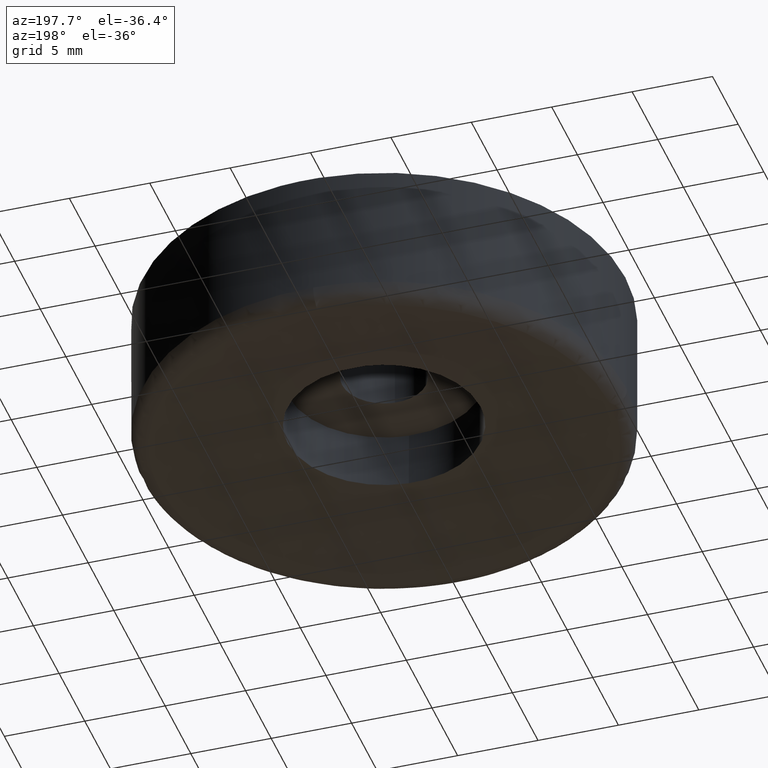
[diagram: clean part render]
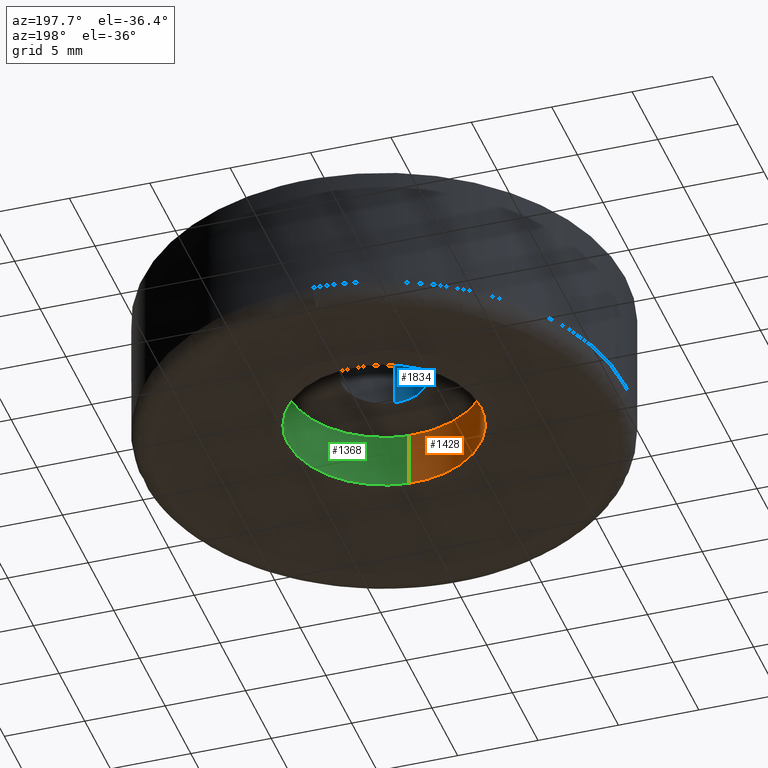
[diagram: same view with three faces highlighted in distinct colors, each labeled with its STEP entity id]
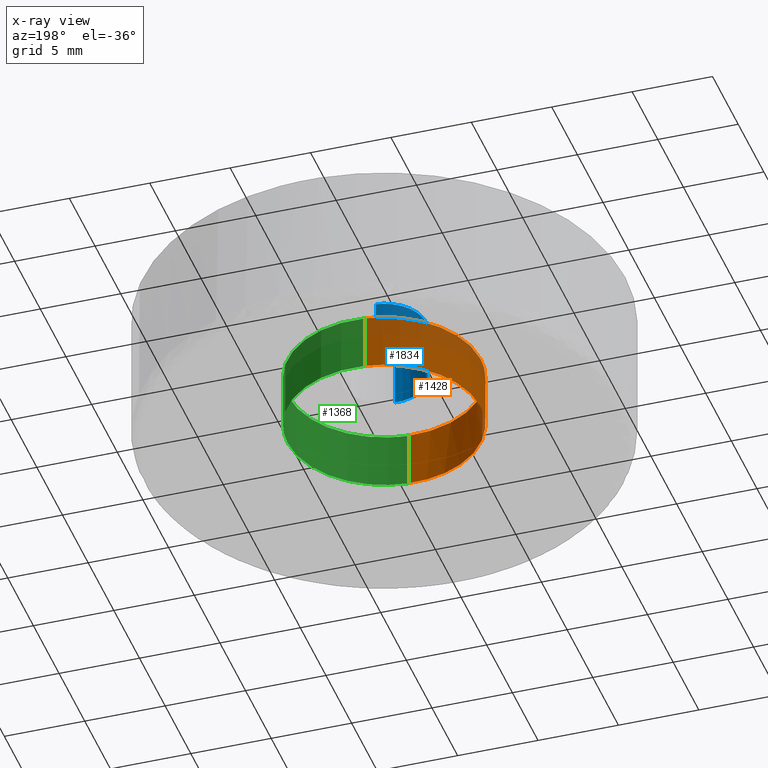
[diagram: x-ray of the same camera — body ghosted, the three highlighted faces saturated]
A machine part, auxiliary view with three faces highlighted in distinct colors.
The next image is the same camera in x-ray (body ghosted, the three faces saturated) — at least one of them is partly hidden behind the body in this view.
Their STEP definitions:

[orange] entity #1428 — the highlighted face is a freeform B-spline surface patch.
#620=CARTESIAN_POINT('',(-0.708195051552524,5.958058389177445,1.500000000000000));
#621=VERTEX_POINT('',#620);
#637=CARTESIAN_POINT('',(-6.0,0.0,1.500000000000000));
#638=VERTEX_POINT('',#637);
#639=CARTESIAN_POINT('',(-6.0,0.0,1.500000000000000));
#640=CARTESIAN_POINT('',(-6.000000000000001,5.329056483955323,1.500000000000000));
#641=CARTESIAN_POINT('',(-0.708195051552524,5.958058389177445,1.500000000000000));
#649=(BOUNDED_CURVE()B_SPLINE_CURVE(2,(#639,#640,#641),.UNSPECIFIED.,.F.,.U.)B_SPLINE_CURVE_WITH_KNOTS((3,3),(0.0,0.229562767279762),.UNSPECIFIED.)CURVE()GEOMETRIC_REPRESENTATION_ITEM()RATIONAL_B_SPLINE_CURVE((1.0,0.731050488686828,0.956027329978387))REPRESENTATION_ITEM(''));
#650=EDGE_CURVE('',#638,#621,#649,.T.);
#652=CARTESIAN_POINT('',(-3.092790974559728,-5.141463214658251,1.499999999999969));
#653=VERTEX_POINT('',#652);
#654=CARTESIAN_POINT('',(-3.092790974559728,-5.141463214658251,1.499999999999969));
#655=CARTESIAN_POINT('',(-6.000000000000001,-3.392663415912824,1.500000000000000));
#656=CARTESIAN_POINT('',(-6.0,0.0,1.500000000000000));
#664=(BOUNDED_CURVE()B_SPLINE_CURVE(2,(#654,#655,#656),.UNSPECIFIED.,.F.,.U.)B_SPLINE_CURVE_WITH_KNOTS((3,3),(0.838022804310851,1.0),.UNSPECIFIED.)CURVE()GEOMETRIC_REPRESENTATION_ITEM()RATIONAL_B_SPLINE_CURVE((0.866368645185217,0.810231911120915,1.0))REPRESENTATION_ITEM(''));
#665=EDGE_CURVE('',#653,#638,#664,.T.);
#705=CARTESIAN_POINT('',(0.366289362214313,-5.988808905210208,1.500000000000000));
#706=VERTEX_POINT('',#705);
#707=CARTESIAN_POINT('',(0.366289362214313,-5.988808905210209,1.500000000000000));
#708=CARTESIAN_POINT('',(0.183315639665489,-6.0,1.500000000000000));
#709=CARTESIAN_POINT('',(0.0,-6.0,1.500000000000000));
#710=CARTESIAN_POINT('',(-1.665557341064682,-5.999999999999999,1.500000000000000));
#711=CARTESIAN_POINT('',(-3.092790974559728,-5.141463214658251,1.499999999999969));
#719=(BOUNDED_CURVE()B_SPLINE_CURVE(2,(#707,#708,#709,#710,#711),.UNSPECIFIED.,.F.,.U.)B_SPLINE_CURVE_WITH_KNOTS((3,2,3),(0.739333016263455,0.750000000000000,0.838022804310852),.UNSPECIFIED.)CURVE()GEOMETRIC_REPRESENTATION_ITEM()RATIONAL_B_SPLINE_CURVE((0.976072157451558,0.987502851193490,1.0,0.896874870065631,0.866368645185216))REPRESENTATION_ITEM(''));
#720=EDGE_CURVE('',#706,#653,#719,.T.);
#1319=CARTESIAN_POINT('',(-0.708194925255550,5.958058404189307,4.999999999999798));
#1320=VERTEX_POINT('',#1319);
#1338=CARTESIAN_POINT('',(-0.708194925255550,5.958058404189307,4.999999999999798));
#1339=CARTESIAN_POINT('',(-0.708195051552524,5.958058389177445,1.500000000000000));
#1340=QUASI_UNIFORM_CURVE('',1,(#1338,#1339),.UNSPECIFIED.,.F.,.U.);
#1341=EDGE_CURVE('',#1320,#621,#1340,.T.);
#1346=CARTESIAN_POINT('',(0.366289339383104,-5.988808906606610,4.999999999999790));
#1347=VERTEX_POINT('',#1346);
#1348=CARTESIAN_POINT('',(0.366289339383104,-5.988808906606610,4.999999999999790));
#1349=CARTESIAN_POINT('',(0.366289362214313,-5.988808905210208,1.500000000000000));
#1350=QUASI_UNIFORM_CURVE('',1,(#1348,#1349),.UNSPECIFIED.,.F.,.U.);
#1351=EDGE_CURVE('',#1347,#706,#1350,.T.);
#1369=CARTESIAN_POINT('',(0.448816315868836,-5.983761340492246,5.087499999999794));
#1370=CARTESIAN_POINT('',(0.407671873025759,-5.986277842421164,5.087499999999797));
#1371=CARTESIAN_POINT('',(-5.622517553322059,-6.355100027740342,5.087499999999797));
#1372=CARTESIAN_POINT('',(-5.988808790531200,-0.366291237209142,5.087499999999796));
#1373=CARTESIAN_POINT('',(-6.334717180395164,5.289260945037006,5.087499999999796));
#1374=CARTESIAN_POINT('',(-0.666076646388818,5.963064800097586,5.087499999999797));
#1375=CARTESIAN_POINT('',(-0.624174310789480,5.968045527856472,5.087499999999796));
#1376=CARTESIAN_POINT('',(0.448816315868836,-5.983761340492246,1.410312500000005));
#1377=CARTESIAN_POINT('',(0.407671873025759,-5.986277842421164,1.410312500000006));
#1378=CARTESIAN_POINT('',(-5.622517553322059,-6.355100027740342,1.410312500000005));
#1379=CARTESIAN_POINT('',(-5.988808790531200,-0.366291237209142,1.410312500000005));
#1380=CARTESIAN_POINT('',(-6.334717180395164,5.289260945037006,1.410312500000006));
#1381=CARTESIAN_POINT('',(-0.666076646388818,5.963064800097586,1.410312500000005));
#1382=CARTESIAN_POINT('',(-0.624174310789480,5.968045527856472,1.410312500000005));
#1390=(BOUNDED_SURFACE()B_SPLINE_SURFACE(2,1,((#1369,#1376),(#1370,#1377),(#1371,#1378),(#1372,#1379),(#1373,#1380),(#1374,#1381),(#1375,#1382)),.UNSPECIFIED.,.F.,.F.,.U.)B_SPLINE_SURFACE_WITH_KNOTS((3,1,2,1,3),(2,2),(0.0,0.097420876338167,10.038546373292441,19.582026850368550,19.679462016986491),(0.0,3.677187499999791),.UNSPECIFIED.)GEOMETRIC_REPRESENTATION_ITEM()RATIONAL_B_SPLINE_SURFACE(((1.005740580190655,1.005740580190655),(1.002870290095327,1.002870290095327),(0.707106781186548,0.707106781186548),(1.0,1.0),(0.718822509939086,0.718822509939086),(0.980146855031721,0.980146855031721),(0.982787909268315,0.982787909268315)))REPRESENTATION_ITEM('')SURFACE());
#1391=CARTESIAN_POINT('',(-6.0,0.0,4.999999999999800));
#1392=VERTEX_POINT('',#1391);
#1393=CARTESIAN_POINT('',(-6.0,0.0,4.999999999999800));
#1394=CARTESIAN_POINT('',(-6.0,5.329056597714101,4.999999999999800));
#1395=CARTESIAN_POINT('',(-0.708194925255550,5.958058404189308,4.999999999999798));
#1403=(BOUNDED_CURVE()B_SPLINE_CURVE(2,(#1393,#1394,#1395),.UNSPECIFIED.,.F.,.U.)B_SPLINE_CURVE_WITH_KNOTS((3,3),(0.0,0.229562770862239),.UNSPECIFIED.)CURVE()GEOMETRIC_REPRESENTATION_ITEM()RATIONAL_B_SPLINE_CURVE((1.0,0.731050484489696,0.956027337000208))REPRESENTATION_ITEM(''));
#1404=EDGE_CURVE('',#1392,#1320,#1403,.T.);
#1405=ORIENTED_EDGE('',*,*,#1404,.F.);
#1406=CARTESIAN_POINT('',(0.366289339383104,-5.988808906606610,4.999999999999790));
#1407=CARTESIAN_POINT('',(0.183315628217877,-6.0,4.999999999999801));
#1408=CARTESIAN_POINT('',(0.0,-6.0,4.999999999999800));
#1409=CARTESIAN_POINT('',(-6.0,-6.0,4.999999999999801));
#1410=CARTESIAN_POINT('',(-6.0,0.0,4.999999999999800));
#1418=(BOUNDED_CURVE()B_SPLINE_CURVE(2,(#1406,#1407,#1408,#1409,#1410),.UNSPECIFIED.,.F.,.U.)B_SPLINE_CURVE_WITH_KNOTS((3,2,3),(0.739333016921257,0.750000000000000,1.0),.UNSPECIFIED.)CURVE()GEOMETRIC_REPRESENTATION_ITEM()RATIONAL_B_SPLINE_CURVE((0.976072158861354,0.987502851964153,1.0,0.707106781186548,1.0))REPRESENTATION_ITEM(''));
#1419=EDGE_CURVE('',#1347,#1392,#1418,.T.);
#1420=ORIENTED_EDGE('',*,*,#1419,.F.);
#1421=ORIENTED_EDGE('',*,*,#1351,.T.);
#1422=ORIENTED_EDGE('',*,*,#720,.T.);
#1423=ORIENTED_EDGE('',*,*,#665,.T.);
#1424=ORIENTED_EDGE('',*,*,#650,.T.);
#1425=ORIENTED_EDGE('',*,*,#1341,.F.);
#1426=EDGE_LOOP('',(#1405,#1420,#1421,#1422,#1423,#1424,#1425));
#1427=FACE_OUTER_BOUND('',#1426,.T.);
#1428=ADVANCED_FACE('',(#1427),#1390,.F.);

[blue] entity #1834 — the highlighted face is a freeform B-spline surface patch.
#1671=CARTESIAN_POINT('',(-0.306886088124188,2.581825115864197,8.499999999999940));
#1672=VERTEX_POINT('',#1671);
#1690=CARTESIAN_POINT('',(-0.306886123398112,2.581825111671437,4.999999999999801));
#1691=VERTEX_POINT('',#1690);
#1692=CARTESIAN_POINT('',(-0.306886088124188,2.581825115864197,8.499999999999940));
#1693=CARTESIAN_POINT('',(-0.306886123398112,2.581825111671437,4.999999999999801));
#1694=QUASI_UNIFORM_CURVE('',1,(#1692,#1693),.UNSPECIFIED.,.F.,.U.);
#1695=EDGE_CURVE('',#1672,#1691,#1694,.T.);
#1714=CARTESIAN_POINT('',(0.158726202832255,-2.595150475894308,4.999999999999800));
#1715=VERTEX_POINT('',#1714);
#1729=CARTESIAN_POINT('',(0.158726202832254,-2.595150475894308,8.499999999999897));
#1730=VERTEX_POINT('',#1729);
#1731=CARTESIAN_POINT('',(0.158726202832254,-2.595150475894308,8.499999999999897));
#1732=CARTESIAN_POINT('',(0.158726202832255,-2.595150475894308,4.999999999999800));
#1733=QUASI_UNIFORM_CURVE('',1,(#1731,#1732),.UNSPECIFIED.,.F.,.U.);
#1734=EDGE_CURVE('',#1730,#1715,#1733,.T.);
#1752=CARTESIAN_POINT('',(0.158726202790628,-2.595150475896853,8.587499999999903));
#1753=CARTESIAN_POINT('',(-2.436424273106225,-2.753876678687481,8.587499999999904));
#1754=CARTESIAN_POINT('',(-2.595150475896853,-0.158726202790628,8.587499999999903));
#1755=CARTESIAN_POINT('',(-2.745044111504571,2.292013076182702,8.587499999999901));
#1756=CARTESIAN_POINT('',(-0.306889010107572,2.581824768545533,8.587499999999904));
#1757=CARTESIAN_POINT('',(0.158726202790628,-2.595150475896853,4.910312499999797));
#1758=CARTESIAN_POINT('',(-2.436424273106225,-2.753876678687481,4.910312499999796));
#1759=CARTESIAN_POINT('',(-2.595150475896853,-0.158726202790628,4.910312499999797));
#1760=CARTESIAN_POINT('',(-2.745044111504571,2.292013076182702,4.910312499999796));
#1761=CARTESIAN_POINT('',(-0.306889010107572,2.581824768545533,4.910312499999797));
#1769=(BOUNDED_SURFACE()B_SPLINE_SURFACE(2,1,((#1752,#1757),(#1753,#1758),(#1754,#1759),(#1755,#1760),(#1756,#1761)),.UNSPECIFIED.,.F.,.F.,.U.)B_SPLINE_SURFACE_WITH_KNOTS((3,2,3),(2,2),(0.0,4.307821048680188,8.443329255413167),(0.0,3.677187500000107),.UNSPECIFIED.)GEOMETRIC_REPRESENTATION_ITEM()RATIONAL_B_SPLINE_SURFACE(((1.0,1.0),(0.707106781186548,0.707106781186548),(1.0,1.0),(0.718822509939086,0.718822509939086),(0.977505800795127,0.977505800795127)))REPRESENTATION_ITEM('')SURFACE());
#1770=CARTESIAN_POINT('',(-2.600000000000000,0.0,8.499999999999901));
#1771=VERTEX_POINT('',#1770);
#1772=CARTESIAN_POINT('',(-2.600000000000000,0.0,8.499999999999901));
#1773=CARTESIAN_POINT('',(-2.600000000000000,2.309256399373561,8.499999999999901));
#1774=CARTESIAN_POINT('',(-0.306886088124188,2.581825115864196,8.499999999999940));
#1782=(BOUNDED_CURVE()B_SPLINE_CURVE(2,(#1772,#1773,#1774),.UNSPECIFIED.,.F.,.U.)B_SPLINE_CURVE_WITH_KNOTS((3,3),(0.0,0.229562664785294),.UNSPECIFIED.)CURVE()GEOMETRIC_REPRESENTATION_ITEM()RATIONAL_B_SPLINE_CURVE((1.0,0.731050608766567,0.956027129084570))REPRESENTATION_ITEM(''));
#1783=EDGE_CURVE('',#1771,#1672,#1782,.T.);
#1784=ORIENTED_EDGE('',*,*,#1783,.F.);
#1785=CARTESIAN_POINT('',(0.158726202832254,-2.595150475894307,8.499999999999897));
#1786=CARTESIAN_POINT('',(0.079437184618073,-2.600000000000000,8.499999999999901));
#1787=CARTESIAN_POINT('',(0.0,-2.600000000000000,8.499999999999901));
#1788=CARTESIAN_POINT('',(-2.600000000000001,-2.600000000000001,8.499999999999901));
#1789=CARTESIAN_POINT('',(-2.600000000000000,0.0,8.499999999999901));
#1797=(BOUNDED_CURVE()B_SPLINE_CURVE(2,(#1785,#1786,#1787,#1788,#1789),.UNSPECIFIED.,.F.,.U.)B_SPLINE_CURVE_WITH_KNOTS((3,2,3),(0.739332962236433,0.750000000000000,1.0),.UNSPECIFIED.)CURVE()GEOMETRIC_REPRESENTATION_ITEM()RATIONAL_B_SPLINE_CURVE((0.976072041661339,0.987502787896897,1.0,0.707106781186548,1.0))REPRESENTATION_ITEM(''));
#1798=EDGE_CURVE('',#1730,#1771,#1797,.T.);
#1799=ORIENTED_EDGE('',*,*,#1798,.F.);
#1800=ORIENTED_EDGE('',*,*,#1734,.T.);
#1801=CARTESIAN_POINT('',(-2.600000000000000,0.0,4.999999999999800));
#1802=VERTEX_POINT('',#1801);
#1803=CARTESIAN_POINT('',(0.158726202832255,-2.595150475894308,4.999999999999800));
#1804=CARTESIAN_POINT('',(0.079437184618074,-2.600000000000000,4.999999999999800));
#1805=CARTESIAN_POINT('',(0.0,-2.600000000000000,4.999999999999800));
#1806=CARTESIAN_POINT('',(-2.600000000000001,-2.600000000000001,4.999999999999801));
#1807=CARTESIAN_POINT('',(-2.600000000000000,0.0,4.999999999999800));
#1815=(BOUNDED_CURVE()B_SPLINE_CURVE(2,(#1803,#1804,#1805,#1806,#1807),.UNSPECIFIED.,.F.,.U.)B_SPLINE_CURVE_WITH_KNOTS((3,2,3),(0.739332962236433,0.750000000000000,1.0),.UNSPECIFIED.)CURVE()GEOMETRIC_REPRESENTATION_ITEM()RATIONAL_B_SPLINE_CURVE((0.976072041661338,0.987502787896897,1.0,0.707106781186548,1.0))REPRESENTATION_ITEM(''));
#1816=EDGE_CURVE('',#1715,#1802,#1815,.T.);
#1817=ORIENTED_EDGE('',*,*,#1816,.T.);
#1818=CARTESIAN_POINT('',(-2.600000000000000,0.0,4.999999999999800));
#1819=CARTESIAN_POINT('',(-2.600000000000000,2.309256367601487,4.999999999999800));
#1820=CARTESIAN_POINT('',(-0.306886123398112,2.581825111671437,4.999999999999801));
#1828=(BOUNDED_CURVE()B_SPLINE_CURVE(2,(#1818,#1819,#1820),.UNSPECIFIED.,.F.,.U.)B_SPLINE_CURVE_WITH_KNOTS((3,3),(0.0,0.229562662476304),.UNSPECIFIED.)CURVE()GEOMETRIC_REPRESENTATION_ITEM()RATIONAL_B_SPLINE_CURVE((1.0,0.731050611471717,0.956027124558846))REPRESENTATION_ITEM(''));
#1829=EDGE_CURVE('',#1802,#1691,#1828,.T.);
#1830=ORIENTED_EDGE('',*,*,#1829,.T.);
#1831=ORIENTED_EDGE('',*,*,#1695,.F.);
#1832=EDGE_LOOP('',(#1784,#1799,#1800,#1817,#1830,#1831));
#1833=FACE_OUTER_BOUND('',#1832,.T.);
#1834=ADVANCED_FACE('',(#1833),#1769,.F.);

[green] entity #1368 — the highlighted face is a freeform B-spline surface patch.
#598=CARTESIAN_POINT('',(0.470753693218943,-5.981502166934938,1.500000356051195));
#599=VERTEX_POINT('',#598);
#605=CARTESIAN_POINT('',(6.0,0.0,1.500000000000000));
#606=VERTEX_POINT('',#605);
#607=CARTESIAN_POINT('',(6.0,0.0,1.500000000000000));
#608=CARTESIAN_POINT('',(5.999999925505568,-5.546342684399431,1.500000178025598));
#609=CARTESIAN_POINT('',(0.470753693218943,-5.981502166934938,1.500000356051196));
#617=(BOUNDED_CURVE()B_SPLINE_CURVE(2,(#607,#608,#609),.UNSPECIFIED.,.F.,.U.)B_SPLINE_CURVE_WITH_KNOTS((3,3),(0.500000000000000,0.736331321615789),.UNSPECIFIED.)CURVE()GEOMETRIC_REPRESENTATION_ITEM()RATIONAL_B_SPLINE_CURVE((1.0,0.723120634022057,0.969723399961786))REPRESENTATION_ITEM(''));
#618=EDGE_CURVE('',#606,#599,#617,.T.);
#620=CARTESIAN_POINT('',(-0.708195051552524,5.958058389177445,1.500000000000000));
#621=VERTEX_POINT('',#620);
#622=CARTESIAN_POINT('',(-0.708195051552524,5.958058389177445,1.500000000000000));
#623=CARTESIAN_POINT('',(-0.355339484975592,5.999999999999999,1.500000000000000));
#624=CARTESIAN_POINT('',(0.0,6.0,1.500000000000000));
#625=CARTESIAN_POINT('',(6.0,6.0,1.500000000000000));
#626=CARTESIAN_POINT('',(6.0,0.0,1.500000000000000));
#634=(BOUNDED_CURVE()B_SPLINE_CURVE(2,(#622,#623,#624,#625,#626),.UNSPECIFIED.,.F.,.U.)B_SPLINE_CURVE_WITH_KNOTS((3,2,3),(0.229562767279762,0.250000000000000,0.500000000000000),.UNSPECIFIED.)CURVE()GEOMETRIC_REPRESENTATION_ITEM()RATIONAL_B_SPLINE_CURVE((0.956027329978387,0.976056292499719,1.0,0.707106781186548,1.0))REPRESENTATION_ITEM(''));
#635=EDGE_CURVE('',#621,#606,#634,.T.);
#705=CARTESIAN_POINT('',(0.366289362214313,-5.988808905210208,1.500000000000000));
#706=VERTEX_POINT('',#705);
#722=CARTESIAN_POINT('',(0.470753693218943,-5.981502166934938,1.500000356051196));
#723=CARTESIAN_POINT('',(0.418553402273976,-5.985611364905621,1.500000178025597));
#724=CARTESIAN_POINT('',(0.366289362214313,-5.988808905210209,1.500000000000000));
#732=(BOUNDED_CURVE()B_SPLINE_CURVE(2,(#722,#723,#724),.UNSPECIFIED.,.F.,.U.)B_SPLINE_CURVE_WITH_KNOTS((3,3),(0.736331321615789,0.739333016263455),.UNSPECIFIED.)CURVE()GEOMETRIC_REPRESENTATION_ITEM()RATIONAL_B_SPLINE_CURVE((0.969723399961786,0.972855554420027,0.976072157451558))REPRESENTATION_ITEM(''));
#733=EDGE_CURVE('',#599,#706,#732,.T.);
#1297=CARTESIAN_POINT('',(-0.708205407940551,5.958057158181998,5.087499999999797));
#1298=CARTESIAN_POINT('',(-0.537688371827866,5.978325692691634,5.087499999999796));
#1299=CARTESIAN_POINT('',(-0.366291237209142,5.988808790531200,5.087499999999796));
#1300=CARTESIAN_POINT('',(5.622517553322059,6.355100027740342,5.087499999999797));
#1301=CARTESIAN_POINT('',(5.988808790531200,0.366291237209142,5.087499999999796));
#1302=CARTESIAN_POINT('',(6.355100027740342,-5.622517553322059,5.087499999999797));
#1303=CARTESIAN_POINT('',(0.366291237209142,-5.988808790531200,5.087499999999796));
#1304=CARTESIAN_POINT('',(-0.708205407940551,5.958057158181998,1.410312500000005));
#1305=CARTESIAN_POINT('',(-0.537688371827866,5.978325692691634,1.410312500000005));
#1306=CARTESIAN_POINT('',(-0.366291237209142,5.988808790531200,1.410312500000005));
#1307=CARTESIAN_POINT('',(5.622517553322059,6.355100027740342,1.410312500000005));
#1308=CARTESIAN_POINT('',(5.988808790531200,0.366291237209142,1.410312500000005));
#1309=CARTESIAN_POINT('',(6.355100027740342,-5.622517553322059,1.410312500000005));
#1310=CARTESIAN_POINT('',(0.366291237209142,-5.988808790531200,1.410312500000005));
#1318=(BOUNDED_SURFACE()B_SPLINE_SURFACE(2,1,((#1297,#1304),(#1298,#1305),(#1299,#1306),(#1300,#1307),(#1301,#1308),(#1302,#1309),(#1303,#1310)),.UNSPECIFIED.,.F.,.F.,.U.)B_SPLINE_SURFACE_WITH_KNOTS((3,2,2,3),(2,2),(0.0,0.397645019878172,10.338770516832451,20.279896013786729),(0.0,3.677187499999791),.UNSPECIFIED.)GEOMETRIC_REPRESENTATION_ITEM()RATIONAL_B_SPLINE_SURFACE(((0.977505800795127,0.977505800795127),(0.988284271247462,0.988284271247462),(1.0,1.0),(0.707106781186548,0.707106781186548),(1.0,1.0),(0.707106781186548,0.707106781186548),(1.0,1.0)))REPRESENTATION_ITEM('')SURFACE());
#1319=CARTESIAN_POINT('',(-0.708194925255550,5.958058404189307,4.999999999999798));
#1320=VERTEX_POINT('',#1319);
#1321=CARTESIAN_POINT('',(6.0,0.0,4.999999999999800));
#1322=VERTEX_POINT('',#1321);
#1323=CARTESIAN_POINT('',(-0.708194925255550,5.958058404189308,4.999999999999798));
#1324=CARTESIAN_POINT('',(-0.355339421159540,5.999999999999999,4.999999999999800));
#1325=CARTESIAN_POINT('',(0.0,6.0,4.999999999999800));
#1326=CARTESIAN_POINT('',(6.0,6.0,4.999999999999801));
#1327=CARTESIAN_POINT('',(6.0,0.0,4.999999999999800));
#1335=(BOUNDED_CURVE()B_SPLINE_CURVE(2,(#1323,#1324,#1325,#1326,#1327),.UNSPECIFIED.,.F.,.U.)B_SPLINE_CURVE_WITH_KNOTS((3,2,3),(0.229562770862239,0.250000000000000,0.500000000000000),.UNSPECIFIED.)CURVE()GEOMETRIC_REPRESENTATION_ITEM()RATIONAL_B_SPLINE_CURVE((0.956027337000208,0.976056296696852,1.0,0.707106781186548,1.0))REPRESENTATION_ITEM(''));
#1336=EDGE_CURVE('',#1320,#1322,#1335,.T.);
#1337=ORIENTED_EDGE('',*,*,#1336,.F.);
#1338=CARTESIAN_POINT('',(-0.708194925255550,5.958058404189307,4.999999999999798));
#1339=CARTESIAN_POINT('',(-0.708195051552524,5.958058389177445,1.500000000000000));
#1340=QUASI_UNIFORM_CURVE('',1,(#1338,#1339),.UNSPECIFIED.,.F.,.U.);
#1341=EDGE_CURVE('',#1320,#621,#1340,.T.);
#1342=ORIENTED_EDGE('',*,*,#1341,.T.);
#1343=ORIENTED_EDGE('',*,*,#635,.T.);
#1344=ORIENTED_EDGE('',*,*,#618,.T.);
#1345=ORIENTED_EDGE('',*,*,#733,.T.);
#1346=CARTESIAN_POINT('',(0.366289339383104,-5.988808906606610,4.999999999999790));
#1347=VERTEX_POINT('',#1346);
#1348=CARTESIAN_POINT('',(0.366289339383104,-5.988808906606610,4.999999999999790));
#1349=CARTESIAN_POINT('',(0.366289362214313,-5.988808905210208,1.500000000000000));
#1350=QUASI_UNIFORM_CURVE('',1,(#1348,#1349),.UNSPECIFIED.,.F.,.U.);
#1351=EDGE_CURVE('',#1347,#706,#1350,.T.);
#1352=ORIENTED_EDGE('',*,*,#1351,.F.);
#1353=CARTESIAN_POINT('',(6.0,0.0,4.999999999999800));
#1354=CARTESIAN_POINT('',(6.000000000000001,-5.644238193409426,4.999999999999801));
#1355=CARTESIAN_POINT('',(0.366289339383104,-5.988808906606610,4.999999999999790));
#1363=(BOUNDED_CURVE()B_SPLINE_CURVE(2,(#1353,#1354,#1355),.UNSPECIFIED.,.F.,.U.)B_SPLINE_CURVE_WITH_KNOTS((3,3),(0.500000000000000,0.739333016921257),.UNSPECIFIED.)CURVE()GEOMETRIC_REPRESENTATION_ITEM()RATIONAL_B_SPLINE_CURVE((1.0,0.719603929222394,0.976072158861354))REPRESENTATION_ITEM(''));
#1364=EDGE_CURVE('',#1322,#1347,#1363,.T.);
#1365=ORIENTED_EDGE('',*,*,#1364,.F.);
#1366=EDGE_LOOP('',(#1337,#1342,#1343,#1344,#1345,#1352,#1365));
#1367=FACE_OUTER_BOUND('',#1366,.T.);
#1368=ADVANCED_FACE('',(#1367),#1318,.F.);